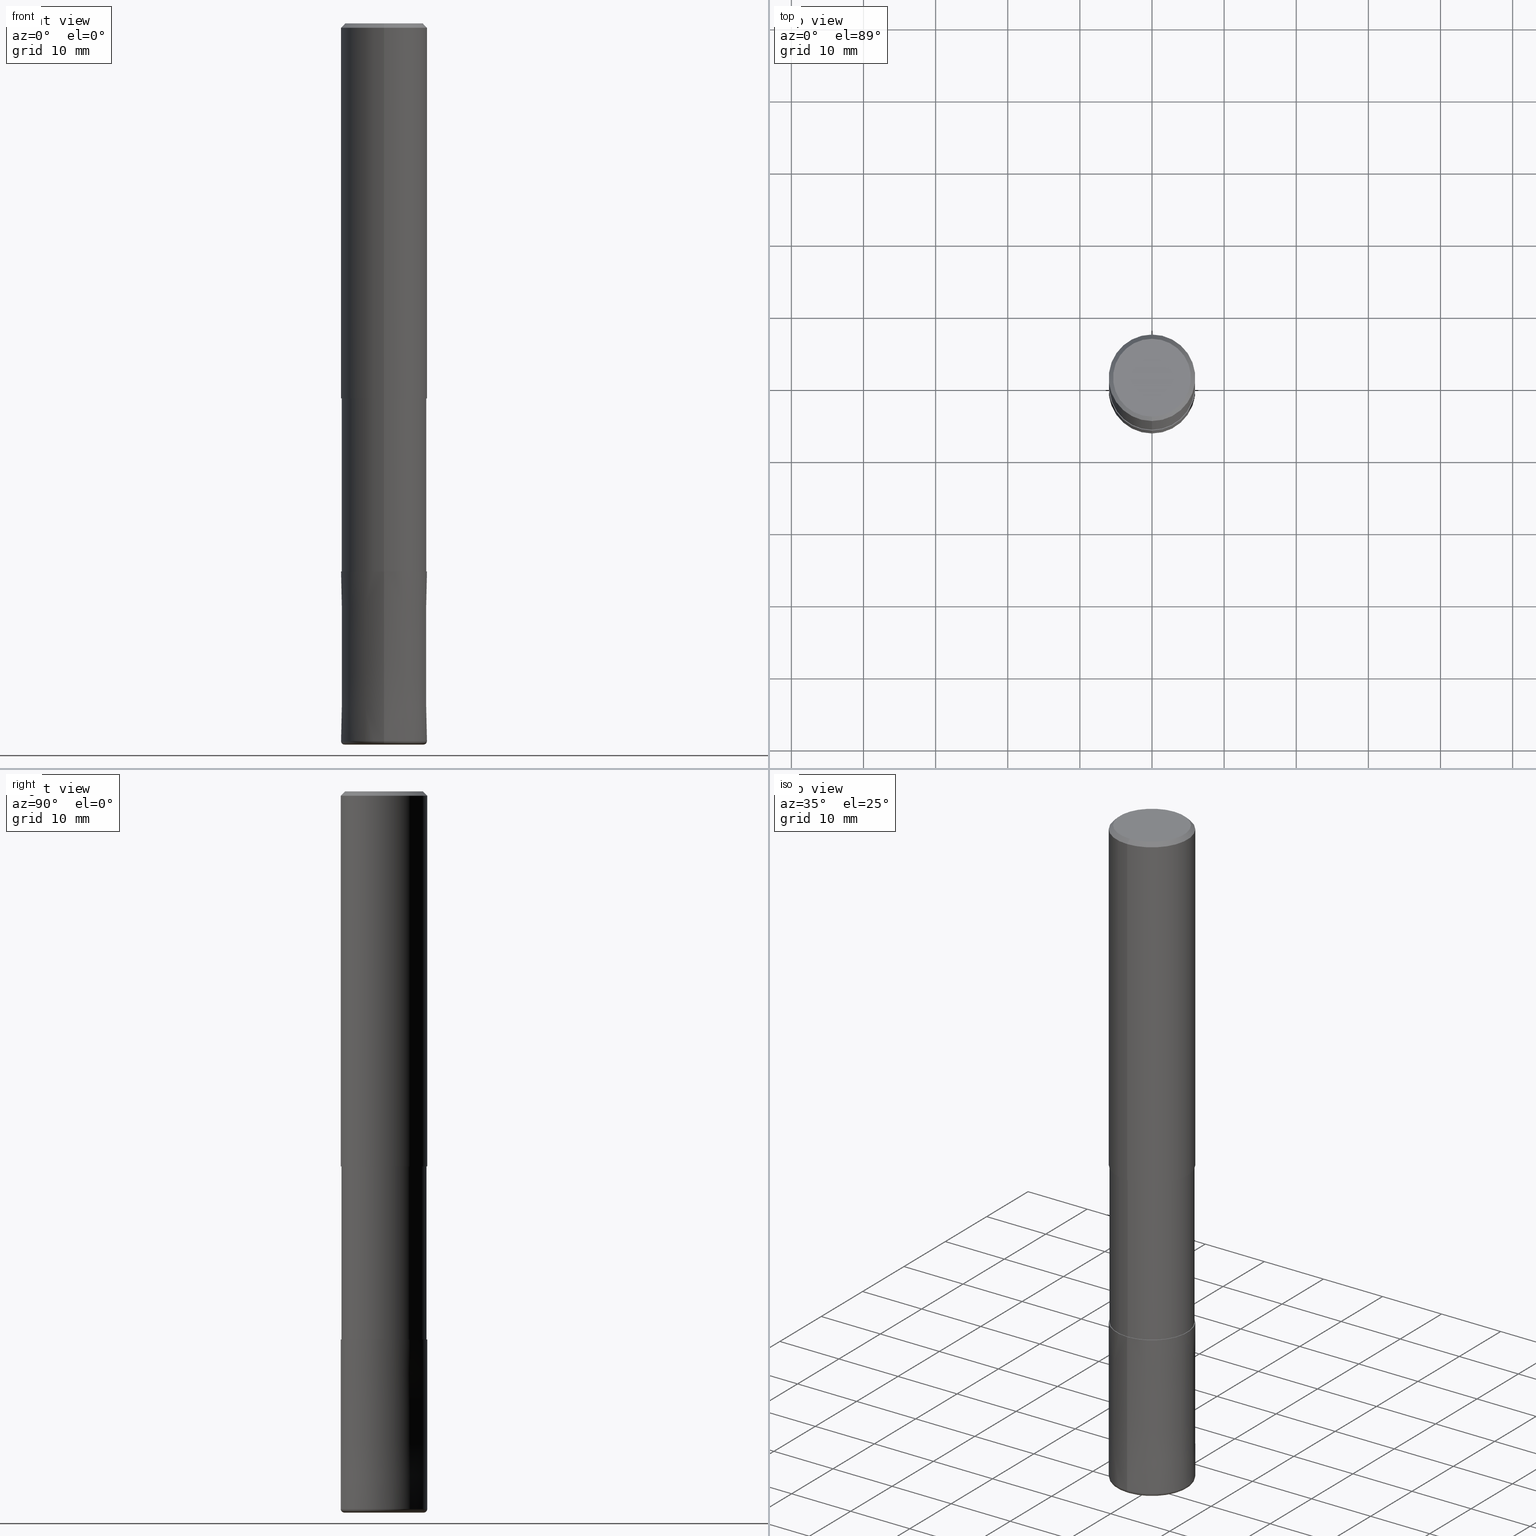
[diagram: canonical four-view strip — front | top / right | iso, engineering-drawing reading convention]
A machine part, canonical four-view strip (front | top / right | iso — engineering-drawing reading convention). The complete STEP part file that produces these views, byte-faithful:
ISO-10303-21;
HEADER;
FILE_DESCRIPTION(('no description'),'unknown implementation level');
FILE_NAME('CXLRS5120-05-48-Huellk.stp','  ',('CIMSOURCE GmbH'),('CADClick - KiM GmbH - www.kimweb.de'),'unknown preprocess','ACIS','unknown authorization');
FILE_SCHEMA(('automotive_design'));
ENDSEC;
DATA;
#1=MECHANICAL_DESIGN_GEOMETRIC_PRESENTATION_REPRESENTATION(' ',(#14,#15,#16,#17,#18,#19,#20,#21,#22,#23,#24,#25,#26,#27,#28,#29,#30,#31,#32,#33,#34,#35,#36,#37,#38,#39,#40,#41,#42,#43,#44,#45,#46,#47,#48,#49,#50,#51,#52,#53,#54,#55,#56,#57,#58,#59,#60,#61,#62,#63,#64,#65,#66,#67,#68,#69,#70,#71,#72,#73,#74,#75,#76,#77,#78,#79,#80,#81,#82,#83,#84,#85,#86,#87,#88,#89,#90,#91,#92,#93,#94,#95,#96,#97),#10);
#2=PRODUCT_DEFINITION_CONTEXT('',#98,'design');
#3=APPLICATION_PROTOCOL_DEFINITION('INTERNATIONAL STANDARD','automotive_design',1994,#98);
#4=PRODUCT_CATEGORY_RELATIONSHIP('NONE','NONE',#99,#100);
#5=SHAPE_DEFINITION_REPRESENTATION(#101,#102);
#6=PRODUCT_DEFINITION_CONTEXT('',#103,'design');
#7=APPLICATION_PROTOCOL_DEFINITION('INTERNATIONAL STANDARD','automotive_design',1994,#103);
#8=PRODUCT_CATEGORY_RELATIONSHIP('NONE','NONE',#104,#105);
#9=SHAPE_DEFINITION_REPRESENTATION(#106,#107);
#10= (GEOMETRIC_REPRESENTATION_CONTEXT(3)GLOBAL_UNCERTAINTY_ASSIGNED_CONTEXT((#110))GLOBAL_UNIT_ASSIGNED_CONTEXT((#112,#113,#114))REPRESENTATION_CONTEXT('NONE','WORKSPACE'));
#14=STYLED_ITEM('',(#116),#117);
#15=STYLED_ITEM('',(#118),#119);
#16=STYLED_ITEM('',(#120),#121);
#17=STYLED_ITEM('',(#122),#123);
#18=STYLED_ITEM('',(#124),#125);
#19=STYLED_ITEM('',(#126),#127);
#20=STYLED_ITEM('',(#128),#129);
#21=STYLED_ITEM('',(#130),#131);
#22=STYLED_ITEM('',(#132),#133);
#23=STYLED_ITEM('',(#134),#135);
#24=STYLED_ITEM('',(#136),#137);
#25=STYLED_ITEM('',(#138),#139);
#26=STYLED_ITEM('',(#140),#141);
#27=STYLED_ITEM('',(#142),#143);
#28=STYLED_ITEM('',(#144),#145);
#29=STYLED_ITEM('',(#146),#147);
#30=STYLED_ITEM('',(#148),#149);
#31=STYLED_ITEM('',(#150),#151);
#32=STYLED_ITEM('',(#152),#153);
#33=STYLED_ITEM('',(#154),#155);
#34=STYLED_ITEM('',(#156),#157);
#35=STYLED_ITEM('',(#158),#159);
#36=STYLED_ITEM('',(#160),#161);
#37=STYLED_ITEM('',(#162),#163);
#38=STYLED_ITEM('',(#164),#165);
#39=STYLED_ITEM('',(#166),#167);
#40=STYLED_ITEM('',(#168),#169);
#41=STYLED_ITEM('',(#170),#171);
#42=STYLED_ITEM('',(#172),#173);
#43=STYLED_ITEM('',(#174),#175);
#44=STYLED_ITEM('',(#176),#177);
#45=STYLED_ITEM('',(#178),#179);
#46=STYLED_ITEM('',(#180),#181);
#47=STYLED_ITEM('',(#182),#183);
#48=STYLED_ITEM('',(#184),#185);
#49=STYLED_ITEM('',(#186),#187);
#50=STYLED_ITEM('',(#188),#189);
#51=STYLED_ITEM('',(#190),#191);
#52=STYLED_ITEM('',(#192),#193);
#53=STYLED_ITEM('',(#194),#195);
#54=STYLED_ITEM('',(#196),#197);
#55=STYLED_ITEM('',(#198),#199);
#56=STYLED_ITEM('',(#200),#201);
#57=STYLED_ITEM('',(#202),#203);
#58=STYLED_ITEM('',(#204),#205);
#59=STYLED_ITEM('',(#206),#207);
#60=STYLED_ITEM('',(#208),#209);
#61=STYLED_ITEM('',(#210),#211);
#62=STYLED_ITEM('',(#212),#213);
#63=STYLED_ITEM('',(#214),#215);
#64=STYLED_ITEM('',(#216),#217);
#65=STYLED_ITEM('',(#218),#219);
#66=STYLED_ITEM('',(#220),#221);
#67=STYLED_ITEM('',(#222),#223);
#68=STYLED_ITEM('',(#224),#225);
#69=STYLED_ITEM('',(#226),#227);
#70=STYLED_ITEM('',(#228),#229);
#71=STYLED_ITEM('',(#230),#231);
#72=STYLED_ITEM('',(#232),#233);
#73=STYLED_ITEM('',(#234),#235);
#74=STYLED_ITEM('',(#236),#237);
#75=STYLED_ITEM('',(#238),#239);
#76=STYLED_ITEM('',(#240),#241);
#77=STYLED_ITEM('',(#242),#243);
#78=STYLED_ITEM('',(#244),#245);
#79=STYLED_ITEM('',(#246),#247);
#80=STYLED_ITEM('',(#248),#249);
#81=STYLED_ITEM('',(#250),#251);
#82=STYLED_ITEM('',(#252),#253);
#83=STYLED_ITEM('',(#254),#255);
#84=STYLED_ITEM('',(#256),#257);
#85=STYLED_ITEM('',(#258),#259);
#86=STYLED_ITEM('',(#260),#261);
#87=STYLED_ITEM('',(#262),#263);
#88=STYLED_ITEM('',(#264),#265);
#89=STYLED_ITEM('',(#266),#267);
#90=STYLED_ITEM('',(#268),#269);
#91=STYLED_ITEM('',(#270),#271);
#92=STYLED_ITEM('',(#272),#273);
#93=STYLED_ITEM('',(#274),#275);
#94=STYLED_ITEM('',(#276),#277);
#95=STYLED_ITEM('',(#278),#279);
#96=STYLED_ITEM('',(#280),#281);
#97=STYLED_ITEM('',(#282),#283);
#98=APPLICATION_CONTEXT(' ');
#99=PRODUCT_CATEGORY('part','NONE');
#100=PRODUCT_RELATED_PRODUCT_CATEGORY('detail',' ',(#284));
#101=PRODUCT_DEFINITION_SHAPE('NONE','NONE',#285);
#102=ADVANCED_BREP_SHAPE_REPRESENTATION('1',(#195,#286),#10);
#103=APPLICATION_CONTEXT(' ');
#104=PRODUCT_CATEGORY('part','NONE');
#105=PRODUCT_RELATED_PRODUCT_CATEGORY('detail',' ',(#287));
#106=PRODUCT_DEFINITION_SHAPE('NONE','NONE',#288);
#107=ADVANCED_BREP_SHAPE_REPRESENTATION('2',(#209,#289),#10);
#110=UNCERTAINTY_MEASURE_WITH_UNIT(LENGTH_MEASURE(1.0E-006),#112,'','');
#112= (CONVERSION_BASED_UNIT('MILLIMETRE',#292)LENGTH_UNIT()NAMED_UNIT(#295));
#113= (NAMED_UNIT(#297)PLANE_ANGLE_UNIT()SI_UNIT($,.RADIAN.));
#114= (NAMED_UNIT(#297)SOLID_ANGLE_UNIT()SI_UNIT($,.STERADIAN.));
#116=PRESENTATION_STYLE_ASSIGNMENT((#303));
#117=EDGE_CURVE('',#127,#161,#304,.T.);
#118=PRESENTATION_STYLE_ASSIGNMENT((#305));
#119=EDGE_CURVE('',#127,#247,#306,.T.);
#120=PRESENTATION_STYLE_ASSIGNMENT((#307));
#121=ADVANCED_FACE('',(#308),#309,.F.);
#122=PRESENTATION_STYLE_ASSIGNMENT((#310));
#123=EDGE_CURVE('',#157,#235,#311,.T.);
#124=PRESENTATION_STYLE_ASSIGNMENT((#312));
#125=VERTEX_POINT('',#313);
#126=PRESENTATION_STYLE_ASSIGNMENT((#314));
#127=VERTEX_POINT('',#315);
#128=PRESENTATION_STYLE_ASSIGNMENT((#316));
#129=EDGE_CURVE('',#261,#165,#317,.T.);
#130=PRESENTATION_STYLE_ASSIGNMENT((#318));
#131=VERTEX_POINT('',#319);
#132=PRESENTATION_STYLE_ASSIGNMENT((#320));
#133=ADVANCED_FACE('',(#321),#322,.T.);
#134=PRESENTATION_STYLE_ASSIGNMENT((#323));
#135=EDGE_CURVE('',#197,#169,#324,.T.);
#136=PRESENTATION_STYLE_ASSIGNMENT((#325));
#137=EDGE_CURVE('',#127,#153,#326,.T.);
#138=PRESENTATION_STYLE_ASSIGNMENT((#327));
#139=VERTEX_POINT('',#328);
#140=PRESENTATION_STYLE_ASSIGNMENT((#329));
#141=ADVANCED_FACE('',(#330),#331,.T.);
#142=PRESENTATION_STYLE_ASSIGNMENT((#332));
#143=ADVANCED_FACE('',(#333),#334,.T.);
#144=PRESENTATION_STYLE_ASSIGNMENT((#335));
#145=EDGE_CURVE('',#125,#161,#336,.T.);
#146=PRESENTATION_STYLE_ASSIGNMENT((#337));
#147=EDGE_CURVE('',#161,#127,#338,.T.);
#148=PRESENTATION_STYLE_ASSIGNMENT((#339));
#149=ADVANCED_FACE('',(#340),#341,.T.);
#150=PRESENTATION_STYLE_ASSIGNMENT((#342));
#151=EDGE_CURVE('',#171,#157,#343,.T.);
#152=PRESENTATION_STYLE_ASSIGNMENT((#344));
#153=VERTEX_POINT('',#345);
#154=PRESENTATION_STYLE_ASSIGNMENT((#346));
#155=ADVANCED_FACE('',(#347),#348,.T.);
#156=PRESENTATION_STYLE_ASSIGNMENT((#349));
#157=VERTEX_POINT('',#350);
#158=PRESENTATION_STYLE_ASSIGNMENT((#351));
#159=EDGE_CURVE('',#275,#261,#352,.T.);
#160=PRESENTATION_STYLE_ASSIGNMENT((#353));
#161=VERTEX_POINT('',#354);
#162=PRESENTATION_STYLE_ASSIGNMENT((#355));
#163=EDGE_CURVE('',#241,#131,#356,.T.);
#164=PRESENTATION_STYLE_ASSIGNMENT((#357));
#165=VERTEX_POINT('',#358);
#166=PRESENTATION_STYLE_ASSIGNMENT((#359));
#167=EDGE_CURVE('',#139,#245,#360,.T.);
#168=PRESENTATION_STYLE_ASSIGNMENT((#361));
#169=VERTEX_POINT('',#362);
#170=PRESENTATION_STYLE_ASSIGNMENT((#363));
#171=VERTEX_POINT('',#364);
#172=PRESENTATION_STYLE_ASSIGNMENT((#365));
#173=ADVANCED_FACE('',(#366),#367,.F.);
#174=PRESENTATION_STYLE_ASSIGNMENT((#368));
#175=EDGE_CURVE('',#245,#139,#369,.T.);
#176=PRESENTATION_STYLE_ASSIGNMENT((#370));
#177=EDGE_CURVE('',#245,#237,#371,.T.);
#178=PRESENTATION_STYLE_ASSIGNMENT((#372));
#179=EDGE_CURVE('',#165,#235,#373,.T.);
#180=PRESENTATION_STYLE_ASSIGNMENT((#374));
#181=EDGE_CURVE('',#235,#275,#375,.T.);
#182=PRESENTATION_STYLE_ASSIGNMENT((#376));
#183=ADVANCED_FACE('',(#377,#378),#379,.T.);
#184=PRESENTATION_STYLE_ASSIGNMENT((#380));
#185=EDGE_CURVE('',#269,#243,#381,.T.);
#186=PRESENTATION_STYLE_ASSIGNMENT((#382));
#187=ADVANCED_FACE('',(#383),#384,.T.);
#188=PRESENTATION_STYLE_ASSIGNMENT((#385));
#189=VERTEX_POINT('',#386);
#190=PRESENTATION_STYLE_ASSIGNMENT((#387));
#191=EDGE_CURVE('',#249,#237,#388,.T.);
#192=PRESENTATION_STYLE_ASSIGNMENT((#389));
#193=EDGE_CURVE('',#241,#169,#390,.T.);
#194=PRESENTATION_STYLE_ASSIGNMENT((#391));
#195=MANIFOLD_SOLID_BREP('1',#392);
#196=PRESENTATION_STYLE_ASSIGNMENT((#393));
#197=VERTEX_POINT('',#394);
#198=PRESENTATION_STYLE_ASSIGNMENT((#395));
#199=EDGE_CURVE('',#165,#171,#396,.T.);
#200=PRESENTATION_STYLE_ASSIGNMENT((#397));
#201=EDGE_CURVE('',#261,#275,#398,.T.);
#202=PRESENTATION_STYLE_ASSIGNMENT((#399));
#203=EDGE_CURVE('',#269,#279,#400,.T.);
#204=PRESENTATION_STYLE_ASSIGNMENT((#401));
#205=ADVANCED_FACE('',(#402,#403),#404,.T.);
#206=PRESENTATION_STYLE_ASSIGNMENT((#405));
#207=ADVANCED_FACE('',(#406),#407,.T.);
#208=PRESENTATION_STYLE_ASSIGNMENT((#408));
#209=MANIFOLD_SOLID_BREP('2',#409);
#210=PRESENTATION_STYLE_ASSIGNMENT((#410));
#211=EDGE_CURVE('',#247,#189,#411,.T.);
#212=PRESENTATION_STYLE_ASSIGNMENT((#412));
#213=EDGE_CURVE('',#125,#153,#413,.T.);
#214=PRESENTATION_STYLE_ASSIGNMENT((#414));
#215=ADVANCED_FACE('',(#415,#416),#417,.T.);
#216=PRESENTATION_STYLE_ASSIGNMENT((#418));
#217=EDGE_CURVE('',#189,#247,#419,.T.);
#218=PRESENTATION_STYLE_ASSIGNMENT((#420));
#219=EDGE_CURVE('',#235,#165,#421,.T.);
#220=PRESENTATION_STYLE_ASSIGNMENT((#422));
#221=EDGE_CURVE('',#189,#161,#423,.T.);
#222=PRESENTATION_STYLE_ASSIGNMENT((#424));
#223=ADVANCED_FACE('',(#425,#426),#427,.T.);
#224=PRESENTATION_STYLE_ASSIGNMENT((#428));
#225=EDGE_CURVE('',#237,#249,#429,.T.);
#226=PRESENTATION_STYLE_ASSIGNMENT((#430));
#227=ADVANCED_FACE('',(#431),#432,.T.);
#228=PRESENTATION_STYLE_ASSIGNMENT((#433));
#229=EDGE_CURVE('',#265,#279,#434,.T.);
#230=PRESENTATION_STYLE_ASSIGNMENT((#435));
#231=ADVANCED_FACE('',(#436),#437,.T.);
#232=PRESENTATION_STYLE_ASSIGNMENT((#438));
#233=EDGE_CURVE('',#279,#265,#439,.T.);
#234=PRESENTATION_STYLE_ASSIGNMENT((#440));
#235=VERTEX_POINT('',#441);
#236=PRESENTATION_STYLE_ASSIGNMENT((#442));
#237=VERTEX_POINT('',#443);
#238=PRESENTATION_STYLE_ASSIGNMENT((#444));
#239=ADVANCED_FACE('',(#445),#446,.T.);
#240=PRESENTATION_STYLE_ASSIGNMENT((#447));
#241=VERTEX_POINT('',#448);
#242=PRESENTATION_STYLE_ASSIGNMENT((#449));
#243=VERTEX_POINT('',#450);
#244=PRESENTATION_STYLE_ASSIGNMENT((#451));
#245=VERTEX_POINT('',#452);
#246=PRESENTATION_STYLE_ASSIGNMENT((#453));
#247=VERTEX_POINT('',#454);
#248=PRESENTATION_STYLE_ASSIGNMENT((#455));
#249=VERTEX_POINT('',#456);
#250=PRESENTATION_STYLE_ASSIGNMENT((#457));
#251=ADVANCED_FACE('',(#458),#459,.T.);
#252=PRESENTATION_STYLE_ASSIGNMENT((#460));
#253=ADVANCED_FACE('',(#461),#462,.T.);
#254=PRESENTATION_STYLE_ASSIGNMENT((#463));
#255=EDGE_CURVE('',#197,#131,#464,.T.);
#256=PRESENTATION_STYLE_ASSIGNMENT((#465));
#257=EDGE_CURVE('',#169,#197,#466,.T.);
#258=PRESENTATION_STYLE_ASSIGNMENT((#467));
#259=EDGE_CURVE('',#131,#241,#468,.T.);
#260=PRESENTATION_STYLE_ASSIGNMENT((#469));
#261=VERTEX_POINT('',#470);
#262=PRESENTATION_STYLE_ASSIGNMENT((#471));
#263=EDGE_CURVE('',#243,#269,#472,.T.);
#264=PRESENTATION_STYLE_ASSIGNMENT((#473));
#265=VERTEX_POINT('',#474);
#266=PRESENTATION_STYLE_ASSIGNMENT((#475));
#267=ADVANCED_FACE('',(#476),#477,.T.);
#268=PRESENTATION_STYLE_ASSIGNMENT((#478));
#269=VERTEX_POINT('',#479);
#270=PRESENTATION_STYLE_ASSIGNMENT((#480));
#271=EDGE_CURVE('',#265,#243,#481,.T.);
#272=PRESENTATION_STYLE_ASSIGNMENT((#482));
#273=EDGE_CURVE('',#249,#139,#483,.T.);
#274=PRESENTATION_STYLE_ASSIGNMENT((#484));
#275=VERTEX_POINT('',#485);
#276=PRESENTATION_STYLE_ASSIGNMENT((#486));
#277=EDGE_CURVE('',#153,#125,#487,.T.);
#278=PRESENTATION_STYLE_ASSIGNMENT((#488));
#279=VERTEX_POINT('',#489);
#280=PRESENTATION_STYLE_ASSIGNMENT((#490));
#281=EDGE_CURVE('',#157,#171,#491,.T.);
#282=PRESENTATION_STYLE_ASSIGNMENT((#492));
#283=ADVANCED_FACE('',(#493),#494,.T.);
#284=PRODUCT('1','1','PART-1-DESC',(#495));
#285=PRODUCT_DEFINITION('NONE','NONE',#496,#2);
#286=AXIS2_PLACEMENT_3D('',#497,#498,#499);
#287=PRODUCT('2','2','PART-2-DESC',(#500));
#288=PRODUCT_DEFINITION('NONE','NONE',#501,#6);
#289=AXIS2_PLACEMENT_3D('',#502,#503,#504);
#292=LENGTH_MEASURE_WITH_UNIT(LENGTH_MEASURE(1.0),#505);
#295=DIMENSIONAL_EXPONENTS(1.0,0.0,0.0,0.0,0.0,0.0,0.0);
#297=DIMENSIONAL_EXPONENTS(0.0,0.0,0.0,0.0,0.0,0.0,0.0);
#303=CURVE_STYLE('',#506,POSITIVE_LENGTH_MEASURE(1.0E-006),#507);
#304=CIRCLE('',#508,6.0);
#305=CURVE_STYLE('',#509,POSITIVE_LENGTH_MEASURE(1.0E-006),#510);
#306=LINE('',#511,#512);
#307=SURFACE_STYLE_USAGE(.BOTH.,#513);
#308=FACE_OUTER_BOUND('',#514,.T.);
#309=CYLINDRICAL_SURFACE('',#515,2.7);
#310=CURVE_STYLE('',#516,POSITIVE_LENGTH_MEASURE(1.0E-006),#517);
#311=LINE('',#518,#519);
#312=POINT_STYLE(' ',#520,POSITIVE_LENGTH_MEASURE(1.0E-006),#521);
#313=CARTESIAN_POINT('',(0.0,5.5,-100.0));
#314=POINT_STYLE(' ',#522,POSITIVE_LENGTH_MEASURE(1.0E-006),#523);
#315=CARTESIAN_POINT('',(7.34763812293426E-016,-6.0,-99.5));
#316=CURVE_STYLE('',#524,POSITIVE_LENGTH_MEASURE(1.0E-006),#525);
#317=LINE('',#526,#527);
#318=POINT_STYLE(' ',#528,POSITIVE_LENGTH_MEASURE(1.0E-006),#529);
#319=CARTESIAN_POINT('',(7.22511625723433E-016,-5.89995,-52.0));
#320=SURFACE_STYLE_USAGE(.BOTH.,#530);
#321=FACE_OUTER_BOUND('',#531,.T.);
#322=CYLINDRICAL_SURFACE('',#532,6.0);
#323=CURVE_STYLE('',#533,POSITIVE_LENGTH_MEASURE(1.0E-006),#534);
#324=CIRCLE('',#535,5.89995);
#325=CURVE_STYLE('',#536,POSITIVE_LENGTH_MEASURE(1.0E-006),#537);
#326=CIRCLE('',#538,0.500000000000007);
#327=POINT_STYLE(' ',#539,POSITIVE_LENGTH_MEASURE(1.0E-006),#540);
#328=CARTESIAN_POINT('',(3.30643715532042E-016,-2.7,-76.0));
#329=SURFACE_STYLE_USAGE(.BOTH.,#541);
#330=FACE_OUTER_BOUND('',#542,.T.);
#331=CYLINDRICAL_SURFACE('',#543,5.89995);
#332=SURFACE_STYLE_USAGE(.BOTH.,#544);
#333=FACE_OUTER_BOUND('',#545,.T.);
#334=TOROIDAL_SURFACE('',#546,5.49999999999999,0.500000000000007);
#335=CURVE_STYLE('',#547,POSITIVE_LENGTH_MEASURE(1.0E-006),#548);
#336=CIRCLE('',#549,0.500000000000007);
#337=CURVE_STYLE('',#550,POSITIVE_LENGTH_MEASURE(1.0E-006),#551);
#338=CIRCLE('',#552,6.0);
#339=SURFACE_STYLE_USAGE(.BOTH.,#553);
#340=FACE_OUTER_BOUND('',#554,.T.);
#341=PLANE('',#555);
#342=CURVE_STYLE('',#556,POSITIVE_LENGTH_MEASURE(1.0E-006),#557);
#343=CIRCLE('',#558,6.0);
#344=POINT_STYLE(' ',#559,POSITIVE_LENGTH_MEASURE(1.0E-006),#560);
#345=CARTESIAN_POINT('',(6.73533494602307E-016,-5.5,-100.0));
#346=SURFACE_STYLE_USAGE(.BOTH.,#561);
#347=FACE_OUTER_BOUND('',#562,.T.);
#348=CONICAL_SURFACE('',#563,5.7,0.785398163397447);
#349=POINT_STYLE(' ',#564,POSITIVE_LENGTH_MEASURE(1.0E-006),#565);
#350=CARTESIAN_POINT('',(7.34763812293426E-016,-6.0,-52.0));
#351=CURVE_STYLE('',#566,POSITIVE_LENGTH_MEASURE(1.0E-006),#567);
#352=CIRCLE('',#568,5.4);
#353=POINT_STYLE(' ',#569,POSITIVE_LENGTH_MEASURE(1.0E-006),#570);
#354=CARTESIAN_POINT('',(0.0,6.0,-99.5));
#355=CURVE_STYLE('',#571,POSITIVE_LENGTH_MEASURE(1.0E-006),#572);
#356=CIRCLE('',#573,5.89995);
#357=POINT_STYLE(' ',#574,POSITIVE_LENGTH_MEASURE(1.0E-006),#575);
#358=CARTESIAN_POINT('',(0.0,6.0,-0.600000000000001));
#359=CURVE_STYLE('',#576,POSITIVE_LENGTH_MEASURE(1.0E-006),#577);
#360=CIRCLE('',#578,2.7);
#361=POINT_STYLE(' ',#579,POSITIVE_LENGTH_MEASURE(1.0E-006),#580);
#362=CARTESIAN_POINT('',(0.0,5.89995,-76.0));
#363=POINT_STYLE(' ',#581,POSITIVE_LENGTH_MEASURE(1.0E-006),#582);
#364=CARTESIAN_POINT('',(0.0,6.0,-52.0));
#365=SURFACE_STYLE_USAGE(.BOTH.,#583);
#366=FACE_OUTER_BOUND('',#584,.T.);
#367=CYLINDRICAL_SURFACE('',#585,2.7);
#368=CURVE_STYLE('',#586,POSITIVE_LENGTH_MEASURE(1.0E-006),#587);
#369=CIRCLE('',#588,2.7);
#370=CURVE_STYLE('',#589,POSITIVE_LENGTH_MEASURE(1.0E-006),#590);
#371=LINE('',#591,#592);
#372=CURVE_STYLE('',#593,POSITIVE_LENGTH_MEASURE(1.0E-006),#594);
#373=CIRCLE('',#595,6.0);
#374=CURVE_STYLE('',#596,POSITIVE_LENGTH_MEASURE(1.0E-006),#597);
#375=LINE('',#598,#599);
#376=SURFACE_STYLE_USAGE(.BOTH.,#600);
#377=FACE_OUTER_BOUND('',#601,.T.);
#378=FACE_BOUND('',#602,.T.);
#379=PLANE('',#603);
#380=CURVE_STYLE('',#604,POSITIVE_LENGTH_MEASURE(1.0E-006),#605);
#381=CIRCLE('',#606,2.7);
#382=SURFACE_STYLE_USAGE(.BOTH.,#607);
#383=FACE_OUTER_BOUND('',#608,.T.);
#384=CONICAL_SURFACE('',#609,5.99995,4.25531914890057E-006);
#385=POINT_STYLE(' ',#610,POSITIVE_LENGTH_MEASURE(1.0E-006),#611);
#386=CARTESIAN_POINT('',(0.0,5.9999,-76.0));
#387=CURVE_STYLE('',#612,POSITIVE_LENGTH_MEASURE(1.0E-006),#613);
#388=CIRCLE('',#614,2.7);
#389=CURVE_STYLE('',#615,POSITIVE_LENGTH_MEASURE(1.0E-006),#616);
#390=LINE('',#617,#618);
#391=SURFACE_STYLE_USAGE(.BOTH.,#619);
#392=CLOSED_SHELL('',(#283,#231,#133,#253,#183,#239,#155,#227,#141,#205,#207,#149));
#393=POINT_STYLE(' ',#620,POSITIVE_LENGTH_MEASURE(1.0E-006),#621);
#394=CARTESIAN_POINT('',(7.22511625723433E-016,-5.89995,-76.0));
#395=CURVE_STYLE('',#622,POSITIVE_LENGTH_MEASURE(1.0E-006),#623);
#396=LINE('',#624,#625);
#397=CURVE_STYLE('',#626,POSITIVE_LENGTH_MEASURE(1.0E-006),#627);
#398=CIRCLE('',#628,5.4);
#399=CURVE_STYLE('',#629,POSITIVE_LENGTH_MEASURE(1.0E-006),#630);
#400=LINE('',#631,#632);
#401=SURFACE_STYLE_USAGE(.BOTH.,#633);
#402=FACE_BOUND('',#634,.T.);
#403=FACE_OUTER_BOUND('',#635,.T.);
#404=PLANE('',#636);
#405=SURFACE_STYLE_USAGE(.BOTH.,#637);
#406=FACE_OUTER_BOUND('',#638,.T.);
#407=CYLINDRICAL_SURFACE('',#639,2.7);
#408=SURFACE_STYLE_USAGE(.BOTH.,#640);
#409=CLOSED_SHELL('',(#121,#143,#187,#223,#251,#267,#215,#173));
#410=CURVE_STYLE('',#641,POSITIVE_LENGTH_MEASURE(1.0E-006),#642);
#411=CIRCLE('',#643,5.9999);
#412=CURVE_STYLE('',#644,POSITIVE_LENGTH_MEASURE(1.0E-006),#645);
#413=CIRCLE('',#646,5.5);
#414=SURFACE_STYLE_USAGE(.BOTH.,#647);
#415=FACE_BOUND('',#648,.T.);
#416=FACE_OUTER_BOUND('',#649,.T.);
#417=PLANE('',#650);
#418=CURVE_STYLE('',#651,POSITIVE_LENGTH_MEASURE(1.0E-006),#652);
#419=CIRCLE('',#653,5.9999);
#420=CURVE_STYLE('',#654,POSITIVE_LENGTH_MEASURE(1.0E-006),#655);
#421=CIRCLE('',#656,6.0);
#422=CURVE_STYLE('',#657,POSITIVE_LENGTH_MEASURE(1.0E-006),#658);
#423=LINE('',#659,#660);
#424=SURFACE_STYLE_USAGE(.BOTH.,#661);
#425=FACE_OUTER_BOUND('',#662,.T.);
#426=FACE_BOUND('',#663,.T.);
#427=PLANE('',#664);
#428=CURVE_STYLE('',#665,POSITIVE_LENGTH_MEASURE(1.0E-006),#666);
#429=CIRCLE('',#667,2.7);
#430=SURFACE_STYLE_USAGE(.BOTH.,#668);
#431=FACE_OUTER_BOUND('',#669,.T.);
#432=CYLINDRICAL_SURFACE('',#670,6.0);
#433=CURVE_STYLE('',#671,POSITIVE_LENGTH_MEASURE(1.0E-006),#672);
#434=CIRCLE('',#673,2.7);
#435=SURFACE_STYLE_USAGE(.BOTH.,#674);
#436=FACE_OUTER_BOUND('',#675,.T.);
#437=CYLINDRICAL_SURFACE('',#676,5.89995);
#438=CURVE_STYLE('',#677,POSITIVE_LENGTH_MEASURE(1.0E-006),#678);
#439=CIRCLE('',#679,2.7);
#440=POINT_STYLE(' ',#680,POSITIVE_LENGTH_MEASURE(1.0E-006),#681);
#441=CARTESIAN_POINT('',(7.34763812293426E-016,-6.0,-0.600000000000001));
#442=POINT_STYLE(' ',#682,POSITIVE_LENGTH_MEASURE(1.0E-006),#683);
#443=CARTESIAN_POINT('',(0.0,2.7,-100.0));
#444=SURFACE_STYLE_USAGE(.BOTH.,#684);
#445=FACE_OUTER_BOUND('',#685,.T.);
#446=PLANE('',#686);
#447=POINT_STYLE(' ',#687,POSITIVE_LENGTH_MEASURE(1.0E-006),#688);
#448=CARTESIAN_POINT('',(0.0,5.89995,-52.0));
#449=POINT_STYLE(' ',#689,POSITIVE_LENGTH_MEASURE(1.0E-006),#690);
#450=CARTESIAN_POINT('',(0.0,2.7,-99.76));
#451=POINT_STYLE(' ',#691,POSITIVE_LENGTH_MEASURE(1.0E-006),#692);
#452=CARTESIAN_POINT('',(0.0,2.7,-76.0));
#453=POINT_STYLE(' ',#693,POSITIVE_LENGTH_MEASURE(1.0E-006),#694);
#454=CARTESIAN_POINT('',(7.34751566229888E-016,-5.9999,-76.0));
#455=POINT_STYLE(' ',#695,POSITIVE_LENGTH_MEASURE(1.0E-006),#696);
#456=CARTESIAN_POINT('',(3.30643715532042E-016,-2.7,-100.0));
#457=SURFACE_STYLE_USAGE(.BOTH.,#697);
#458=FACE_OUTER_BOUND('',#698,.T.);
#459=CONICAL_SURFACE('',#699,5.99995,4.25531914890057E-006);
#460=SURFACE_STYLE_USAGE(.BOTH.,#700);
#461=FACE_OUTER_BOUND('',#701,.T.);
#462=CONICAL_SURFACE('',#702,5.7,0.785398163397447);
#463=CURVE_STYLE('',#703,POSITIVE_LENGTH_MEASURE(1.0E-006),#704);
#464=LINE('',#705,#706);
#465=CURVE_STYLE('',#707,POSITIVE_LENGTH_MEASURE(1.0E-006),#708);
#466=CIRCLE('',#709,5.89995);
#467=CURVE_STYLE('',#710,POSITIVE_LENGTH_MEASURE(1.0E-006),#711);
#468=CIRCLE('',#712,5.89995);
#469=POINT_STYLE(' ',#713,POSITIVE_LENGTH_MEASURE(1.0E-006),#714);
#470=CARTESIAN_POINT('',(0.0,5.4,0.0));
#471=CURVE_STYLE('',#715,POSITIVE_LENGTH_MEASURE(1.0E-006),#716);
#472=CIRCLE('',#717,2.7);
#473=POINT_STYLE(' ',#718,POSITIVE_LENGTH_MEASURE(1.0E-006),#719);
#474=CARTESIAN_POINT('',(0.0,2.7,-76.0));
#475=SURFACE_STYLE_USAGE(.BOTH.,#720);
#476=FACE_OUTER_BOUND('',#721,.T.);
#477=TOROIDAL_SURFACE('',#722,5.49999999999999,0.500000000000007);
#478=POINT_STYLE(' ',#723,POSITIVE_LENGTH_MEASURE(1.0E-006),#724);
#479=CARTESIAN_POINT('',(3.30643715532042E-016,-2.7,-99.76));
#480=CURVE_STYLE('',#725,POSITIVE_LENGTH_MEASURE(1.0E-006),#726);
#481=LINE('',#727,#728);
#482=CURVE_STYLE('',#729,POSITIVE_LENGTH_MEASURE(1.0E-006),#730);
#483=LINE('',#731,#732);
#484=POINT_STYLE(' ',#733,POSITIVE_LENGTH_MEASURE(1.0E-006),#734);
#485=CARTESIAN_POINT('',(6.61287431064084E-016,-5.4,0.0));
#486=CURVE_STYLE('',#735,POSITIVE_LENGTH_MEASURE(1.0E-006),#736);
#487=CIRCLE('',#737,5.5);
#488=POINT_STYLE(' ',#738,POSITIVE_LENGTH_MEASURE(1.0E-006),#739);
#489=CARTESIAN_POINT('',(3.30643715532042E-016,-2.7,-76.0));
#490=CURVE_STYLE('',#740,POSITIVE_LENGTH_MEASURE(1.0E-006),#741);
#491=CIRCLE('',#742,6.0);
#492=SURFACE_STYLE_USAGE(.BOTH.,#743);
#493=FACE_OUTER_BOUND('',#744,.T.);
#494=CYLINDRICAL_SURFACE('',#745,2.7);
#495=PRODUCT_CONTEXT('',#98,'mechanical');
#496=PRODUCT_DEFINITION_FORMATION_WITH_SPECIFIED_SOURCE(' ','NONE',#284,.NOT_KNOWN.);
#497=CARTESIAN_POINT('',(0.0,0.0,0.0));
#498=DIRECTION('',(0.0,0.0,1.0));
#499=DIRECTION('',(1.0,0.0,0.0));
#500=PRODUCT_CONTEXT('',#103,'mechanical');
#501=PRODUCT_DEFINITION_FORMATION_WITH_SPECIFIED_SOURCE(' ','NONE',#287,.NOT_KNOWN.);
#502=CARTESIAN_POINT('',(0.0,0.0,0.0));
#503=DIRECTION('',(0.0,0.0,1.0));
#504=DIRECTION('',(1.0,0.0,0.0));
#505= (NAMED_UNIT(#295)LENGTH_UNIT()SI_UNIT(.MILLI.,.METRE.));
#506=DRAUGHTING_PRE_DEFINED_CURVE_FONT('continuous');
#507=COLOUR_RGB('',0.800000011920929,0.800000011920929,0.800000011920929);
#508=AXIS2_PLACEMENT_3D('',#747,#748,#749);
#509=DRAUGHTING_PRE_DEFINED_CURVE_FONT('continuous');
#510=COLOUR_RGB('',0.800000011920929,0.800000011920929,0.800000011920929);
#511=CARTESIAN_POINT('',(7.34757689261657E-016,-5.99995,-87.75));
#512=VECTOR('',#750,1.0);
#513=SURFACE_SIDE_STYLE('',(#751));
#514=EDGE_LOOP('',(#752,#753,#754,#755));
#515=AXIS2_PLACEMENT_3D('',#756,#757,#758);
#516=DRAUGHTING_PRE_DEFINED_CURVE_FONT('continuous');
#517=COLOUR_RGB('',0.498039215803146,0.498039215803146,0.498039215803146);
#518=CARTESIAN_POINT('',(7.34763812293426E-016,-6.0,-26.3));
#519=VECTOR('',#759,1.0);
#520=PRE_DEFINED_MARKER('');
#521=COLOUR_RGB('',0.800000011920929,0.800000011920929,0.800000011920929);
#522=PRE_DEFINED_MARKER('');
#523=COLOUR_RGB('',0.800000011920929,0.800000011920929,0.800000011920929);
#524=DRAUGHTING_PRE_DEFINED_CURVE_FONT('continuous');
#525=COLOUR_RGB('',0.498039215803146,0.498039215803146,0.498039215803146);
#526=CARTESIAN_POINT('',(-6.98025621678755E-016,5.7,-0.300000000000004));
#527=VECTOR('',#760,1.0);
#528=PRE_DEFINED_MARKER('');
#529=COLOUR_RGB('',0.498039215803146,0.498039215803146,0.498039215803146);
#530=SURFACE_SIDE_STYLE('',(#761));
#531=EDGE_LOOP('',(#762,#763,#764,#765));
#532=AXIS2_PLACEMENT_3D('',#766,#767,#768);
#533=DRAUGHTING_PRE_DEFINED_CURVE_FONT('continuous');
#534=COLOUR_RGB('',0.498039215803146,0.498039215803146,0.498039215803146);
#535=AXIS2_PLACEMENT_3D('',#769,#770,#771);
#536=DRAUGHTING_PRE_DEFINED_CURVE_FONT('continuous');
#537=COLOUR_RGB('',0.800000011920929,0.800000011920929,0.800000011920929);
#538=AXIS2_PLACEMENT_3D('',#772,#773,#774);
#539=PRE_DEFINED_MARKER('');
#540=COLOUR_RGB('',0.800000011920929,0.800000011920929,0.800000011920929);
#541=SURFACE_SIDE_STYLE('',(#775));
#542=EDGE_LOOP('',(#776,#777,#778,#779));
#543=AXIS2_PLACEMENT_3D('',#780,#781,#782);
#544=SURFACE_SIDE_STYLE('',(#783));
#545=EDGE_LOOP('',(#784,#785,#786,#787));
#546=AXIS2_PLACEMENT_3D('',#788,#789,#790);
#547=DRAUGHTING_PRE_DEFINED_CURVE_FONT('continuous');
#548=COLOUR_RGB('',0.800000011920929,0.800000011920929,0.800000011920929);
#549=AXIS2_PLACEMENT_3D('',#791,#792,#793);
#550=DRAUGHTING_PRE_DEFINED_CURVE_FONT('continuous');
#551=COLOUR_RGB('',0.800000011920929,0.800000011920929,0.800000011920929);
#552=AXIS2_PLACEMENT_3D('',#794,#795,#796);
#553=SURFACE_SIDE_STYLE('',(#797));
#554=EDGE_LOOP('',(#798,#799));
#555=AXIS2_PLACEMENT_3D('',#800,#801,#802);
#556=DRAUGHTING_PRE_DEFINED_CURVE_FONT('continuous');
#557=COLOUR_RGB('',0.498039215803146,0.498039215803146,0.498039215803146);
#558=AXIS2_PLACEMENT_3D('',#803,#804,#805);
#559=PRE_DEFINED_MARKER('');
#560=COLOUR_RGB('',0.800000011920929,0.800000011920929,0.800000011920929);
#561=SURFACE_SIDE_STYLE('',(#806));
#562=EDGE_LOOP('',(#807,#808,#809,#810));
#563=AXIS2_PLACEMENT_3D('',#811,#812,#813);
#564=PRE_DEFINED_MARKER('');
#565=COLOUR_RGB('',0.498039215803146,0.498039215803146,0.498039215803146);
#566=DRAUGHTING_PRE_DEFINED_CURVE_FONT('continuous');
#567=COLOUR_RGB('',0.498039215803146,0.498039215803146,0.498039215803146);
#568=AXIS2_PLACEMENT_3D('',#814,#815,#816);
#569=PRE_DEFINED_MARKER('');
#570=COLOUR_RGB('',0.800000011920929,0.800000011920929,0.800000011920929);
#571=DRAUGHTING_PRE_DEFINED_CURVE_FONT('continuous');
#572=COLOUR_RGB('',0.498039215803146,0.498039215803146,0.498039215803146);
#573=AXIS2_PLACEMENT_3D('',#817,#818,#819);
#574=PRE_DEFINED_MARKER('');
#575=COLOUR_RGB('',0.498039215803146,0.498039215803146,0.498039215803146);
#576=DRAUGHTING_PRE_DEFINED_CURVE_FONT('continuous');
#577=COLOUR_RGB('',0.800000011920929,0.800000011920929,0.800000011920929);
#578=AXIS2_PLACEMENT_3D('',#820,#821,#822);
#579=PRE_DEFINED_MARKER('');
#580=COLOUR_RGB('',0.498039215803146,0.498039215803146,0.498039215803146);
#581=PRE_DEFINED_MARKER('');
#582=COLOUR_RGB('',0.498039215803146,0.498039215803146,0.498039215803146);
#583=SURFACE_SIDE_STYLE('',(#823));
#584=EDGE_LOOP('',(#824,#825,#826,#827));
#585=AXIS2_PLACEMENT_3D('',#828,#829,#830);
#586=DRAUGHTING_PRE_DEFINED_CURVE_FONT('continuous');
#587=COLOUR_RGB('',0.800000011920929,0.800000011920929,0.800000011920929);
#588=AXIS2_PLACEMENT_3D('',#831,#832,#833);
#589=DRAUGHTING_PRE_DEFINED_CURVE_FONT('continuous');
#590=COLOUR_RGB('',0.800000011920929,0.800000011920929,0.800000011920929);
#591=CARTESIAN_POINT('',(-3.30643715532042E-016,2.7,-88.0));
#592=VECTOR('',#834,1.0);
#593=DRAUGHTING_PRE_DEFINED_CURVE_FONT('continuous');
#594=COLOUR_RGB('',0.498039215803146,0.498039215803146,0.498039215803146);
#595=AXIS2_PLACEMENT_3D('',#835,#836,#837);
#596=DRAUGHTING_PRE_DEFINED_CURVE_FONT('continuous');
#597=COLOUR_RGB('',0.498039215803146,0.498039215803146,0.498039215803146);
#598=CARTESIAN_POINT('',(6.98025621678755E-016,-5.7,-0.300000000000004));
#599=VECTOR('',#838,1.0);
#600=SURFACE_SIDE_STYLE('',(#839));
#601=EDGE_LOOP('',(#840,#841));
#602=EDGE_LOOP('',(#842,#843));
#603=AXIS2_PLACEMENT_3D('',#844,#845,#846);
#604=DRAUGHTING_PRE_DEFINED_CURVE_FONT('continuous');
#605=COLOUR_RGB('',0.498039215803146,0.498039215803146,0.498039215803146);
#606=AXIS2_PLACEMENT_3D('',#847,#848,#849);
#607=SURFACE_SIDE_STYLE('',(#850));
#608=EDGE_LOOP('',(#851,#852,#853,#854));
#609=AXIS2_PLACEMENT_3D('',#855,#856,#857);
#610=PRE_DEFINED_MARKER('');
#611=COLOUR_RGB('',0.800000011920929,0.800000011920929,0.800000011920929);
#612=DRAUGHTING_PRE_DEFINED_CURVE_FONT('continuous');
#613=COLOUR_RGB('',0.800000011920929,0.800000011920929,0.800000011920929);
#614=AXIS2_PLACEMENT_3D('',#858,#859,#860);
#615=DRAUGHTING_PRE_DEFINED_CURVE_FONT('continuous');
#616=COLOUR_RGB('',0.498039215803146,0.498039215803146,0.498039215803146);
#617=CARTESIAN_POINT('',(-7.22511625723433E-016,5.89995,-64.0));
#618=VECTOR('',#861,1.0);
#619=SURFACE_SIDE_STYLE('',(#862));
#620=PRE_DEFINED_MARKER('');
#621=COLOUR_RGB('',0.498039215803146,0.498039215803146,0.498039215803146);
#622=DRAUGHTING_PRE_DEFINED_CURVE_FONT('continuous');
#623=COLOUR_RGB('',0.498039215803146,0.498039215803146,0.498039215803146);
#624=CARTESIAN_POINT('',(-7.34763812293426E-016,6.0,-26.3));
#625=VECTOR('',#863,1.0);
#626=DRAUGHTING_PRE_DEFINED_CURVE_FONT('continuous');
#627=COLOUR_RGB('',0.498039215803146,0.498039215803146,0.498039215803146);
#628=AXIS2_PLACEMENT_3D('',#864,#865,#866);
#629=DRAUGHTING_PRE_DEFINED_CURVE_FONT('continuous');
#630=COLOUR_RGB('',0.498039215803146,0.498039215803146,0.498039215803146);
#631=CARTESIAN_POINT('',(3.30643715532042E-016,-2.7,-87.88));
#632=VECTOR('',#867,1.0);
#633=SURFACE_SIDE_STYLE('',(#868));
#634=EDGE_LOOP('',(#869,#870));
#635=EDGE_LOOP('',(#871,#872));
#636=AXIS2_PLACEMENT_3D('',#873,#874,#875);
#637=SURFACE_SIDE_STYLE('',(#876));
#638=EDGE_LOOP('',(#877,#878,#879,#880));
#639=AXIS2_PLACEMENT_3D('',#881,#882,#883);
#640=SURFACE_SIDE_STYLE('',(#884));
#641=DRAUGHTING_PRE_DEFINED_CURVE_FONT('continuous');
#642=COLOUR_RGB('',0.800000011920929,0.800000011920929,0.800000011920929);
#643=AXIS2_PLACEMENT_3D('',#885,#886,#887);
#644=DRAUGHTING_PRE_DEFINED_CURVE_FONT('continuous');
#645=COLOUR_RGB('',0.800000011920929,0.800000011920929,0.800000011920929);
#646=AXIS2_PLACEMENT_3D('',#888,#889,#890);
#647=SURFACE_SIDE_STYLE('',(#891));
#648=EDGE_LOOP('',(#892,#893));
#649=EDGE_LOOP('',(#894,#895));
#650=AXIS2_PLACEMENT_3D('',#896,#897,#898);
#651=DRAUGHTING_PRE_DEFINED_CURVE_FONT('continuous');
#652=COLOUR_RGB('',0.800000011920929,0.800000011920929,0.800000011920929);
#653=AXIS2_PLACEMENT_3D('',#899,#900,#901);
#654=DRAUGHTING_PRE_DEFINED_CURVE_FONT('continuous');
#655=COLOUR_RGB('',0.498039215803146,0.498039215803146,0.498039215803146);
#656=AXIS2_PLACEMENT_3D('',#902,#903,#904);
#657=DRAUGHTING_PRE_DEFINED_CURVE_FONT('continuous');
#658=COLOUR_RGB('',0.800000011920929,0.800000011920929,0.800000011920929);
#659=CARTESIAN_POINT('',(-7.34757689261657E-016,5.99995,-87.75));
#660=VECTOR('',#905,1.0);
#661=SURFACE_SIDE_STYLE('',(#906));
#662=EDGE_LOOP('',(#907,#908));
#663=EDGE_LOOP('',(#909,#910));
#664=AXIS2_PLACEMENT_3D('',#911,#912,#913);
#665=DRAUGHTING_PRE_DEFINED_CURVE_FONT('continuous');
#666=COLOUR_RGB('',0.800000011920929,0.800000011920929,0.800000011920929);
#667=AXIS2_PLACEMENT_3D('',#914,#915,#916);
#668=SURFACE_SIDE_STYLE('',(#917));
#669=EDGE_LOOP('',(#918,#919,#920,#921));
#670=AXIS2_PLACEMENT_3D('',#922,#923,#924);
#671=DRAUGHTING_PRE_DEFINED_CURVE_FONT('continuous');
#672=COLOUR_RGB('',0.498039215803146,0.498039215803146,0.498039215803146);
#673=AXIS2_PLACEMENT_3D('',#925,#926,#927);
#674=SURFACE_SIDE_STYLE('',(#928));
#675=EDGE_LOOP('',(#929,#930,#931,#932));
#676=AXIS2_PLACEMENT_3D('',#933,#934,#935);
#677=DRAUGHTING_PRE_DEFINED_CURVE_FONT('continuous');
#678=COLOUR_RGB('',0.498039215803146,0.498039215803146,0.498039215803146);
#679=AXIS2_PLACEMENT_3D('',#936,#937,#938);
#680=PRE_DEFINED_MARKER('');
#681=COLOUR_RGB('',0.498039215803146,0.498039215803146,0.498039215803146);
#682=PRE_DEFINED_MARKER('');
#683=COLOUR_RGB('',0.800000011920929,0.800000011920929,0.800000011920929);
#684=SURFACE_SIDE_STYLE('',(#939));
#685=EDGE_LOOP('',(#940,#941));
#686=AXIS2_PLACEMENT_3D('',#942,#943,#944);
#687=PRE_DEFINED_MARKER('');
#688=COLOUR_RGB('',0.498039215803146,0.498039215803146,0.498039215803146);
#689=PRE_DEFINED_MARKER('');
#690=COLOUR_RGB('',0.498039215803146,0.498039215803146,0.498039215803146);
#691=PRE_DEFINED_MARKER('');
#692=COLOUR_RGB('',0.800000011920929,0.800000011920929,0.800000011920929);
#693=PRE_DEFINED_MARKER('');
#694=COLOUR_RGB('',0.800000011920929,0.800000011920929,0.800000011920929);
#695=PRE_DEFINED_MARKER('');
#696=COLOUR_RGB('',0.800000011920929,0.800000011920929,0.800000011920929);
#697=SURFACE_SIDE_STYLE('',(#945));
#698=EDGE_LOOP('',(#946,#947,#948,#949));
#699=AXIS2_PLACEMENT_3D('',#950,#951,#952);
#700=SURFACE_SIDE_STYLE('',(#953));
#701=EDGE_LOOP('',(#954,#955,#956,#957));
#702=AXIS2_PLACEMENT_3D('',#958,#959,#960);
#703=DRAUGHTING_PRE_DEFINED_CURVE_FONT('continuous');
#704=COLOUR_RGB('',0.498039215803146,0.498039215803146,0.498039215803146);
#705=CARTESIAN_POINT('',(7.22511625723433E-016,-5.89995,-64.0));
#706=VECTOR('',#961,1.0);
#707=DRAUGHTING_PRE_DEFINED_CURVE_FONT('continuous');
#708=COLOUR_RGB('',0.498039215803146,0.498039215803146,0.498039215803146);
#709=AXIS2_PLACEMENT_3D('',#962,#963,#964);
#710=DRAUGHTING_PRE_DEFINED_CURVE_FONT('continuous');
#711=COLOUR_RGB('',0.498039215803146,0.498039215803146,0.498039215803146);
#712=AXIS2_PLACEMENT_3D('',#965,#966,#967);
#713=PRE_DEFINED_MARKER('');
#714=COLOUR_RGB('',0.498039215803146,0.498039215803146,0.498039215803146);
#715=DRAUGHTING_PRE_DEFINED_CURVE_FONT('continuous');
#716=COLOUR_RGB('',0.498039215803146,0.498039215803146,0.498039215803146);
#717=AXIS2_PLACEMENT_3D('',#968,#969,#970);
#718=PRE_DEFINED_MARKER('');
#719=COLOUR_RGB('',0.498039215803146,0.498039215803146,0.498039215803146);
#720=SURFACE_SIDE_STYLE('',(#971));
#721=EDGE_LOOP('',(#972,#973,#974,#975));
#722=AXIS2_PLACEMENT_3D('',#976,#977,#978);
#723=PRE_DEFINED_MARKER('');
#724=COLOUR_RGB('',0.498039215803146,0.498039215803146,0.498039215803146);
#725=DRAUGHTING_PRE_DEFINED_CURVE_FONT('continuous');
#726=COLOUR_RGB('',0.498039215803146,0.498039215803146,0.498039215803146);
#727=CARTESIAN_POINT('',(-3.30643715532042E-016,2.7,-87.88));
#728=VECTOR('',#979,1.0);
#729=DRAUGHTING_PRE_DEFINED_CURVE_FONT('continuous');
#730=COLOUR_RGB('',0.800000011920929,0.800000011920929,0.800000011920929);
#731=CARTESIAN_POINT('',(3.30643715532042E-016,-2.7,-88.0));
#732=VECTOR('',#980,1.0);
#733=PRE_DEFINED_MARKER('');
#734=COLOUR_RGB('',0.498039215803146,0.498039215803146,0.498039215803146);
#735=DRAUGHTING_PRE_DEFINED_CURVE_FONT('continuous');
#736=COLOUR_RGB('',0.800000011920929,0.800000011920929,0.800000011920929);
#737=AXIS2_PLACEMENT_3D('',#981,#982,#983);
#738=PRE_DEFINED_MARKER('');
#739=COLOUR_RGB('',0.498039215803146,0.498039215803146,0.498039215803146);
#740=DRAUGHTING_PRE_DEFINED_CURVE_FONT('continuous');
#741=COLOUR_RGB('',0.498039215803146,0.498039215803146,0.498039215803146);
#742=AXIS2_PLACEMENT_3D('',#984,#985,#986);
#743=SURFACE_SIDE_STYLE('',(#987));
#744=EDGE_LOOP('',(#988,#989,#990,#991));
#745=AXIS2_PLACEMENT_3D('',#992,#993,#994);
#747=CARTESIAN_POINT('',(0.0,0.0,-99.5));
#748=DIRECTION('',(0.0,0.0,-1.0));
#749=DIRECTION('',(0.0,1.0,0.0));
#750=DIRECTION('',(-5.21109086726994E-022,4.25531914888773E-006,0.999999999990946));
#751=SURFACE_STYLE_FILL_AREA(#995);
#752=ORIENTED_EDGE('',*,*,#177,.F.);
#753=ORIENTED_EDGE('',*,*,#167,.F.);
#754=ORIENTED_EDGE('',*,*,#273,.F.);
#755=ORIENTED_EDGE('',*,*,#191,.T.);
#756=CARTESIAN_POINT('',(0.0,0.0,-88.0));
#757=DIRECTION('',(-0.0,-0.0,1.0));
#758=DIRECTION('',(0.0,1.0,0.0));
#759=DIRECTION('',(-0.0,-0.0,1.0));
#760=DIRECTION('',(-8.65927457071934E-017,0.707106781186546,-0.707106781186549));
#761=SURFACE_STYLE_FILL_AREA(#996);
#762=ORIENTED_EDGE('',*,*,#199,.F.);
#763=ORIENTED_EDGE('',*,*,#179,.T.);
#764=ORIENTED_EDGE('',*,*,#123,.F.);
#765=ORIENTED_EDGE('',*,*,#151,.F.);
#766=CARTESIAN_POINT('',(0.0,0.0,-26.3));
#767=DIRECTION('',(-0.0,-0.0,1.0));
#768=DIRECTION('',(0.0,1.0,0.0));
#769=CARTESIAN_POINT('',(0.0,0.0,-76.0));
#770=DIRECTION('',(0.0,0.0,-1.0));
#771=DIRECTION('',(0.0,1.0,0.0));
#772=CARTESIAN_POINT('',(6.73533494602307E-016,-5.49999999999999,-99.5));
#773=DIRECTION('',(1.0,1.22460635382238E-016,0.0));
#774=DIRECTION('',(1.22460635382238E-016,-1.0,-0.0));
#775=SURFACE_STYLE_FILL_AREA(#997);
#776=ORIENTED_EDGE('',*,*,#193,.T.);
#777=ORIENTED_EDGE('',*,*,#135,.F.);
#778=ORIENTED_EDGE('',*,*,#255,.T.);
#779=ORIENTED_EDGE('',*,*,#259,.T.);
#780=CARTESIAN_POINT('',(0.0,0.0,-64.0));
#781=DIRECTION('',(-0.0,-0.0,1.0));
#782=DIRECTION('',(0.0,1.0,0.0));
#783=SURFACE_STYLE_FILL_AREA(#998);
#784=ORIENTED_EDGE('',*,*,#137,.F.);
#785=ORIENTED_EDGE('',*,*,#117,.T.);
#786=ORIENTED_EDGE('',*,*,#145,.F.);
#787=ORIENTED_EDGE('',*,*,#277,.F.);
#788=CARTESIAN_POINT('',(0.0,0.0,-99.5));
#789=DIRECTION('',(0.0,0.0,-1.0));
#790=DIRECTION('',(0.0,-1.0,0.0));
#791=CARTESIAN_POINT('',(-6.73533494602307E-016,5.49999999999999,-99.5));
#792=DIRECTION('',(1.0,1.22460635382238E-016,0.0));
#793=DIRECTION('',(-1.22460635382238E-016,1.0,0.0));
#794=CARTESIAN_POINT('',(0.0,0.0,-99.5));
#795=DIRECTION('',(0.0,0.0,-1.0));
#796=DIRECTION('',(0.0,1.0,0.0));
#797=SURFACE_STYLE_FILL_AREA(#999);
#798=ORIENTED_EDGE('',*,*,#263,.T.);
#799=ORIENTED_EDGE('',*,*,#185,.T.);
#800=CARTESIAN_POINT('',(0.0,1.35,-99.76));
#801=DIRECTION('',(0.0,0.0,-1.0));
#802=DIRECTION('',(0.0,1.0,0.0));
#803=CARTESIAN_POINT('',(0.0,0.0,-52.0));
#804=DIRECTION('',(0.0,0.0,-1.0));
#805=DIRECTION('',(0.0,1.0,0.0));
#806=SURFACE_STYLE_FILL_AREA(#1000);
#807=ORIENTED_EDGE('',*,*,#129,.T.);
#808=ORIENTED_EDGE('',*,*,#219,.F.);
#809=ORIENTED_EDGE('',*,*,#181,.T.);
#810=ORIENTED_EDGE('',*,*,#159,.T.);
#811=CARTESIAN_POINT('',(0.0,0.0,-0.300000000000004));
#812=DIRECTION('',(0.0,-0.0,-1.0));
#813=DIRECTION('',(0.0,1.0,0.0));
#814=CARTESIAN_POINT('',(0.0,0.0,0.0));
#815=DIRECTION('',(0.0,0.0,-1.0));
#816=DIRECTION('',(0.0,1.0,0.0));
#817=CARTESIAN_POINT('',(0.0,0.0,-52.0));
#818=DIRECTION('',(0.0,0.0,-1.0));
#819=DIRECTION('',(0.0,1.0,0.0));
#820=CARTESIAN_POINT('',(0.0,0.0,-76.0));
#821=DIRECTION('',(0.0,0.0,-1.0));
#822=DIRECTION('',(0.0,1.0,0.0));
#823=SURFACE_STYLE_FILL_AREA(#1001);
#824=ORIENTED_EDGE('',*,*,#177,.T.);
#825=ORIENTED_EDGE('',*,*,#225,.T.);
#826=ORIENTED_EDGE('',*,*,#273,.T.);
#827=ORIENTED_EDGE('',*,*,#175,.F.);
#828=CARTESIAN_POINT('',(0.0,0.0,-88.0));
#829=DIRECTION('',(-0.0,-0.0,1.0));
#830=DIRECTION('',(0.0,1.0,0.0));
#831=CARTESIAN_POINT('',(0.0,0.0,-76.0));
#832=DIRECTION('',(0.0,0.0,-1.0));
#833=DIRECTION('',(0.0,1.0,0.0));
#834=DIRECTION('',(0.0,-0.0,-1.0));
#835=CARTESIAN_POINT('',(0.0,0.0,-0.600000000000001));
#836=DIRECTION('',(0.0,0.0,-1.0));
#837=DIRECTION('',(0.0,1.0,0.0));
#838=DIRECTION('',(-8.65927457071934E-017,0.707106781186546,0.707106781186549));
#839=SURFACE_STYLE_FILL_AREA(#1002);
#840=ORIENTED_EDGE('',*,*,#151,.T.);
#841=ORIENTED_EDGE('',*,*,#281,.T.);
#842=ORIENTED_EDGE('',*,*,#163,.F.);
#843=ORIENTED_EDGE('',*,*,#259,.F.);
#844=CARTESIAN_POINT('',(0.0,3.0,-52.0));
#845=DIRECTION('',(0.0,0.0,-1.0));
#846=DIRECTION('',(0.0,1.0,0.0));
#847=CARTESIAN_POINT('',(0.0,0.0,-99.76));
#848=DIRECTION('',(0.0,0.0,-1.0));
#849=DIRECTION('',(0.0,1.0,0.0));
#850=SURFACE_STYLE_FILL_AREA(#1003);
#851=ORIENTED_EDGE('',*,*,#221,.F.);
#852=ORIENTED_EDGE('',*,*,#217,.T.);
#853=ORIENTED_EDGE('',*,*,#119,.F.);
#854=ORIENTED_EDGE('',*,*,#147,.F.);
#855=CARTESIAN_POINT('',(0.0,0.0,-87.75));
#856=DIRECTION('',(0.0,-0.0,-1.0));
#857=DIRECTION('',(0.0,1.0,0.0));
#858=CARTESIAN_POINT('',(0.0,0.0,-100.0));
#859=DIRECTION('',(0.0,0.0,-1.0));
#860=DIRECTION('',(0.0,1.0,0.0));
#861=DIRECTION('',(0.0,0.0,-1.0));
#862=SURFACE_STYLE_FILL_AREA(#1004);
#863=DIRECTION('',(0.0,0.0,-1.0));
#864=CARTESIAN_POINT('',(0.0,0.0,0.0));
#865=DIRECTION('',(0.0,0.0,-1.0));
#866=DIRECTION('',(0.0,1.0,0.0));
#867=DIRECTION('',(-0.0,-0.0,1.0));
#868=SURFACE_STYLE_FILL_AREA(#1005);
#869=ORIENTED_EDGE('',*,*,#229,.F.);
#870=ORIENTED_EDGE('',*,*,#233,.F.);
#871=ORIENTED_EDGE('',*,*,#257,.T.);
#872=ORIENTED_EDGE('',*,*,#135,.T.);
#873=CARTESIAN_POINT('',(0.0,4.299975,-76.0));
#874=DIRECTION('',(0.0,0.0,-1.0));
#875=DIRECTION('',(0.0,1.0,0.0));
#876=SURFACE_STYLE_FILL_AREA(#1006);
#877=ORIENTED_EDGE('',*,*,#271,.T.);
#878=ORIENTED_EDGE('',*,*,#185,.F.);
#879=ORIENTED_EDGE('',*,*,#203,.T.);
#880=ORIENTED_EDGE('',*,*,#233,.T.);
#881=CARTESIAN_POINT('',(0.0,0.0,-87.88));
#882=DIRECTION('',(-0.0,-0.0,1.0));
#883=DIRECTION('',(0.0,1.0,0.0));
#884=SURFACE_STYLE_FILL_AREA(#1007);
#885=CARTESIAN_POINT('',(0.0,0.0,-76.0));
#886=DIRECTION('',(0.0,0.0,-1.0));
#887=DIRECTION('',(0.0,1.0,0.0));
#888=CARTESIAN_POINT('',(0.0,0.0,-100.0));
#889=DIRECTION('',(0.0,0.0,-1.0));
#890=DIRECTION('',(0.0,1.0,0.0));
#891=SURFACE_STYLE_FILL_AREA(#1008);
#892=ORIENTED_EDGE('',*,*,#225,.F.);
#893=ORIENTED_EDGE('',*,*,#191,.F.);
#894=ORIENTED_EDGE('',*,*,#213,.T.);
#895=ORIENTED_EDGE('',*,*,#277,.T.);
#896=CARTESIAN_POINT('',(0.0,4.1,-100.0));
#897=DIRECTION('',(0.0,0.0,-1.0));
#898=DIRECTION('',(0.0,1.0,0.0));
#899=CARTESIAN_POINT('',(0.0,0.0,-76.0));
#900=DIRECTION('',(0.0,0.0,-1.0));
#901=DIRECTION('',(0.0,1.0,0.0));
#902=CARTESIAN_POINT('',(0.0,0.0,-0.600000000000001));
#903=DIRECTION('',(0.0,0.0,-1.0));
#904=DIRECTION('',(0.0,1.0,0.0));
#905=DIRECTION('',(-5.21109086726994E-022,4.25531914888773E-006,-0.999999999990946));
#906=SURFACE_STYLE_FILL_AREA(#1009);
#907=ORIENTED_EDGE('',*,*,#217,.F.);
#908=ORIENTED_EDGE('',*,*,#211,.F.);
#909=ORIENTED_EDGE('',*,*,#175,.T.);
#910=ORIENTED_EDGE('',*,*,#167,.T.);
#911=CARTESIAN_POINT('',(0.0,4.34995,-76.0));
#912=DIRECTION('',(-0.0,0.0,1.0));
#913=DIRECTION('',(0.0,-1.0,0.0));
#914=CARTESIAN_POINT('',(0.0,0.0,-100.0));
#915=DIRECTION('',(0.0,0.0,-1.0));
#916=DIRECTION('',(0.0,1.0,0.0));
#917=SURFACE_STYLE_FILL_AREA(#1010);
#918=ORIENTED_EDGE('',*,*,#199,.T.);
#919=ORIENTED_EDGE('',*,*,#281,.F.);
#920=ORIENTED_EDGE('',*,*,#123,.T.);
#921=ORIENTED_EDGE('',*,*,#219,.T.);
#922=CARTESIAN_POINT('',(0.0,0.0,-26.3));
#923=DIRECTION('',(-0.0,-0.0,1.0));
#924=DIRECTION('',(0.0,1.0,0.0));
#925=CARTESIAN_POINT('',(0.0,0.0,-76.0));
#926=DIRECTION('',(0.0,0.0,-1.0));
#927=DIRECTION('',(0.0,1.0,0.0));
#928=SURFACE_STYLE_FILL_AREA(#1011);
#929=ORIENTED_EDGE('',*,*,#193,.F.);
#930=ORIENTED_EDGE('',*,*,#163,.T.);
#931=ORIENTED_EDGE('',*,*,#255,.F.);
#932=ORIENTED_EDGE('',*,*,#257,.F.);
#933=CARTESIAN_POINT('',(0.0,0.0,-64.0));
#934=DIRECTION('',(-0.0,-0.0,1.0));
#935=DIRECTION('',(0.0,1.0,0.0));
#936=CARTESIAN_POINT('',(0.0,0.0,-76.0));
#937=DIRECTION('',(0.0,0.0,-1.0));
#938=DIRECTION('',(0.0,1.0,0.0));
#939=SURFACE_STYLE_FILL_AREA(#1012);
#940=ORIENTED_EDGE('',*,*,#201,.F.);
#941=ORIENTED_EDGE('',*,*,#159,.F.);
#942=CARTESIAN_POINT('',(0.0,2.7,0.0));
#943=DIRECTION('',(-0.0,0.0,1.0));
#944=DIRECTION('',(0.0,-1.0,0.0));
#945=SURFACE_STYLE_FILL_AREA(#1013);
#946=ORIENTED_EDGE('',*,*,#221,.T.);
#947=ORIENTED_EDGE('',*,*,#117,.F.);
#948=ORIENTED_EDGE('',*,*,#119,.T.);
#949=ORIENTED_EDGE('',*,*,#211,.T.);
#950=CARTESIAN_POINT('',(0.0,0.0,-87.75));
#951=DIRECTION('',(0.0,-0.0,-1.0));
#952=DIRECTION('',(0.0,1.0,0.0));
#953=SURFACE_STYLE_FILL_AREA(#1014);
#954=ORIENTED_EDGE('',*,*,#129,.F.);
#955=ORIENTED_EDGE('',*,*,#201,.T.);
#956=ORIENTED_EDGE('',*,*,#181,.F.);
#957=ORIENTED_EDGE('',*,*,#179,.F.);
#958=CARTESIAN_POINT('',(0.0,0.0,-0.300000000000004));
#959=DIRECTION('',(0.0,-0.0,-1.0));
#960=DIRECTION('',(0.0,1.0,0.0));
#961=DIRECTION('',(-0.0,-0.0,1.0));
#962=CARTESIAN_POINT('',(0.0,0.0,-76.0));
#963=DIRECTION('',(0.0,0.0,-1.0));
#964=DIRECTION('',(0.0,1.0,0.0));
#965=CARTESIAN_POINT('',(0.0,0.0,-52.0));
#966=DIRECTION('',(0.0,0.0,-1.0));
#967=DIRECTION('',(0.0,1.0,0.0));
#968=CARTESIAN_POINT('',(0.0,0.0,-99.76));
#969=DIRECTION('',(0.0,0.0,-1.0));
#970=DIRECTION('',(0.0,1.0,0.0));
#971=SURFACE_STYLE_FILL_AREA(#1015);
#972=ORIENTED_EDGE('',*,*,#137,.T.);
#973=ORIENTED_EDGE('',*,*,#213,.F.);
#974=ORIENTED_EDGE('',*,*,#145,.T.);
#975=ORIENTED_EDGE('',*,*,#147,.T.);
#976=CARTESIAN_POINT('',(0.0,0.0,-99.5));
#977=DIRECTION('',(0.0,0.0,-1.0));
#978=DIRECTION('',(0.0,-1.0,0.0));
#979=DIRECTION('',(0.0,0.0,-1.0));
#980=DIRECTION('',(0.0,-0.0,1.0));
#981=CARTESIAN_POINT('',(0.0,0.0,-100.0));
#982=DIRECTION('',(0.0,0.0,-1.0));
#983=DIRECTION('',(0.0,1.0,0.0));
#984=CARTESIAN_POINT('',(0.0,0.0,-52.0));
#985=DIRECTION('',(0.0,0.0,-1.0));
#986=DIRECTION('',(0.0,1.0,0.0));
#987=SURFACE_STYLE_FILL_AREA(#1016);
#988=ORIENTED_EDGE('',*,*,#271,.F.);
#989=ORIENTED_EDGE('',*,*,#229,.T.);
#990=ORIENTED_EDGE('',*,*,#203,.F.);
#991=ORIENTED_EDGE('',*,*,#263,.F.);
#992=CARTESIAN_POINT('',(0.0,0.0,-87.88));
#993=DIRECTION('',(-0.0,-0.0,1.0));
#994=DIRECTION('',(0.0,1.0,0.0));
#995=FILL_AREA_STYLE('',(#1017));
#996=FILL_AREA_STYLE('',(#1018));
#997=FILL_AREA_STYLE('',(#1019));
#998=FILL_AREA_STYLE('',(#1020));
#999=FILL_AREA_STYLE('',(#1021));
#1000=FILL_AREA_STYLE('',(#1022));
#1001=FILL_AREA_STYLE('',(#1023));
#1002=FILL_AREA_STYLE('',(#1024));
#1003=FILL_AREA_STYLE('',(#1025));
#1004=FILL_AREA_STYLE('',(#1026));
#1005=FILL_AREA_STYLE('',(#1027));
#1006=FILL_AREA_STYLE('',(#1028));
#1007=FILL_AREA_STYLE('',(#1029));
#1008=FILL_AREA_STYLE('',(#1030));
#1009=FILL_AREA_STYLE('',(#1031));
#1010=FILL_AREA_STYLE('',(#1032));
#1011=FILL_AREA_STYLE('',(#1033));
#1012=FILL_AREA_STYLE('',(#1034));
#1013=FILL_AREA_STYLE('',(#1035));
#1014=FILL_AREA_STYLE('',(#1036));
#1015=FILL_AREA_STYLE('',(#1037));
#1016=FILL_AREA_STYLE('',(#1038));
#1017=FILL_AREA_STYLE_COLOUR('',#1039);
#1018=FILL_AREA_STYLE_COLOUR('',#1040);
#1019=FILL_AREA_STYLE_COLOUR('',#1041);
#1020=FILL_AREA_STYLE_COLOUR('',#1042);
#1021=FILL_AREA_STYLE_COLOUR('',#1043);
#1022=FILL_AREA_STYLE_COLOUR('',#1044);
#1023=FILL_AREA_STYLE_COLOUR('',#1045);
#1024=FILL_AREA_STYLE_COLOUR('',#1046);
#1025=FILL_AREA_STYLE_COLOUR('',#1047);
#1026=FILL_AREA_STYLE_COLOUR('',#1048);
#1027=FILL_AREA_STYLE_COLOUR('',#1049);
#1028=FILL_AREA_STYLE_COLOUR('',#1050);
#1029=FILL_AREA_STYLE_COLOUR('',#1051);
#1030=FILL_AREA_STYLE_COLOUR('',#1052);
#1031=FILL_AREA_STYLE_COLOUR('',#1053);
#1032=FILL_AREA_STYLE_COLOUR('',#1054);
#1033=FILL_AREA_STYLE_COLOUR('',#1055);
#1034=FILL_AREA_STYLE_COLOUR('',#1056);
#1035=FILL_AREA_STYLE_COLOUR('',#1057);
#1036=FILL_AREA_STYLE_COLOUR('',#1058);
#1037=FILL_AREA_STYLE_COLOUR('',#1059);
#1038=FILL_AREA_STYLE_COLOUR('',#1060);
#1039=COLOUR_RGB('',0.800000011920929,0.800000011920929,0.800000011920929);
#1040=COLOUR_RGB('',0.498039215803146,0.498039215803146,0.498039215803146);
#1041=COLOUR_RGB('',0.498039215803146,0.498039215803146,0.498039215803146);
#1042=COLOUR_RGB('',0.800000011920929,0.800000011920929,0.800000011920929);
#1043=COLOUR_RGB('',0.498039215803146,0.498039215803146,0.498039215803146);
#1044=COLOUR_RGB('',0.498039215803146,0.498039215803146,0.498039215803146);
#1045=COLOUR_RGB('',0.800000011920929,0.800000011920929,0.800000011920929);
#1046=COLOUR_RGB('',0.498039215803146,0.498039215803146,0.498039215803146);
#1047=COLOUR_RGB('',0.800000011920929,0.800000011920929,0.800000011920929);
#1048=COLOUR_RGB('',0.498039215803146,0.498039215803146,0.498039215803146);
#1049=COLOUR_RGB('',0.498039215803146,0.498039215803146,0.498039215803146);
#1050=COLOUR_RGB('',0.498039215803146,0.498039215803146,0.498039215803146);
#1051=COLOUR_RGB('',0.800000011920929,0.800000011920929,0.800000011920929);
#1052=COLOUR_RGB('',0.800000011920929,0.800000011920929,0.800000011920929);
#1053=COLOUR_RGB('',0.800000011920929,0.800000011920929,0.800000011920929);
#1054=COLOUR_RGB('',0.498039215803146,0.498039215803146,0.498039215803146);
#1055=COLOUR_RGB('',0.498039215803146,0.498039215803146,0.498039215803146);
#1056=COLOUR_RGB('',0.498039215803146,0.498039215803146,0.498039215803146);
#1057=COLOUR_RGB('',0.800000011920929,0.800000011920929,0.800000011920929);
#1058=COLOUR_RGB('',0.498039215803146,0.498039215803146,0.498039215803146);
#1059=COLOUR_RGB('',0.800000011920929,0.800000011920929,0.800000011920929);
#1060=COLOUR_RGB('',0.498039215803146,0.498039215803146,0.498039215803146);
#1061=AXIS2_PLACEMENT_3D('PCS',#1062,#1063,#1064);
#1062=CARTESIAN_POINT('',(0.0,0.0,0.0));
#1063=DIRECTION('',(0.0,0.0,1.0));
#1064=DIRECTION('',(1.0,0.0,0.0));
#1065=AXIS2_PLACEMENT_3D('CIP',#1066,#1067,#1068);
#1066=CARTESIAN_POINT('',(0.0,0.0,-100.0));
#1067=DIRECTION('',(0.0,0.0,1.0));
#1068=DIRECTION('',(1.0,0.0,0.0));
#1069=AXIS2_PLACEMENT_3D('CRP',#1070,#1071,#1072);
#1070=CARTESIAN_POINT('',(-6.0,0.0,-100.0));
#1071=DIRECTION('',(0.0,0.0,1.0));
#1072=DIRECTION('',(1.0,0.0,0.0));
#1073=AXIS2_PLACEMENT_3D('MCS',#1074,#1075,#1076);
#1074=CARTESIAN_POINT('',(0.0,0.0,-52.0));
#1075=DIRECTION('',(0.0,0.0,1.0));
#1076=DIRECTION('',(1.0,0.0,0.0));
#1077=CONSTRUCTIVE_GEOMETRY_REPRESENTATION_RELATIONSHIP('coordinate systems',$,#102,#1078);
#1078=CONSTRUCTIVE_GEOMETRY_REPRESENTATION('coordinate systems',(#1061,#1065,#1069,#1073),#10);
ENDSEC;
END-ISO-10303-21;
